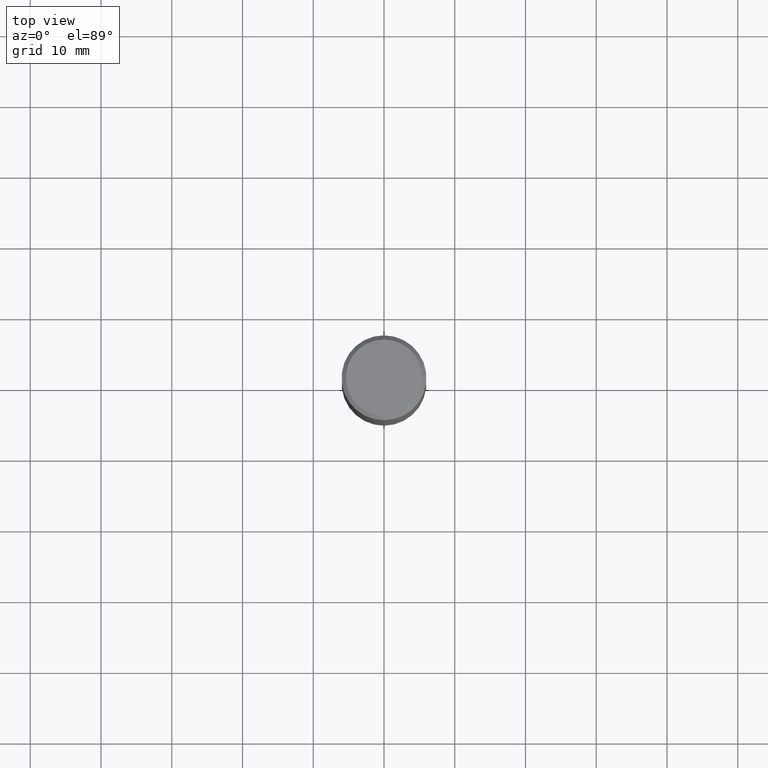
[diagram: clean part render]
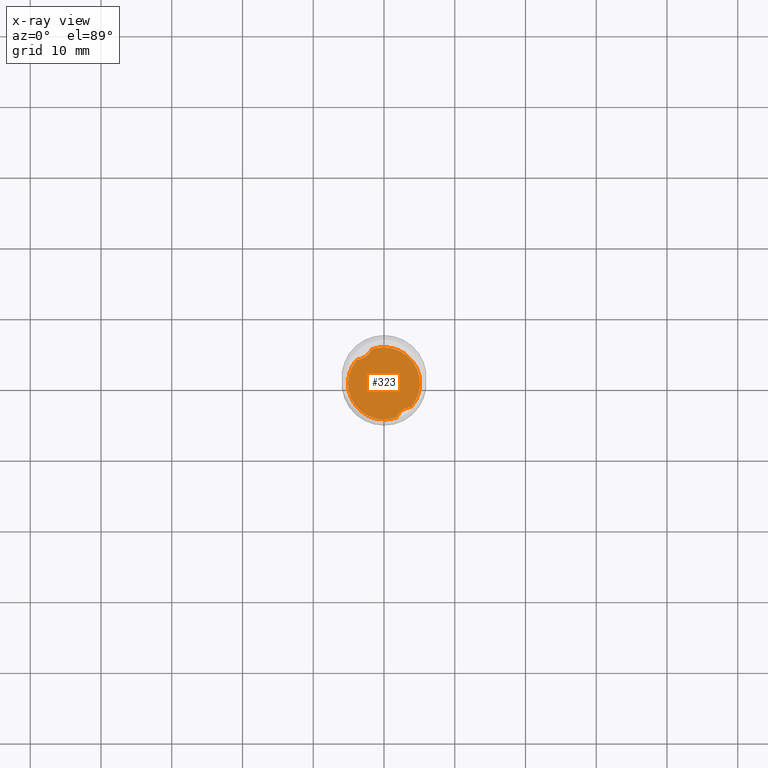
[diagram: x-ray — body ghosted, one internal face saturated and labeled with its STEP entity id]
A machine part, top view, then the same camera in x-ray: the body is ghosted and one INTERNAL B-rep face — a face not visible from any outside direction — is saturated and labeled: STEP entity #323.
In plain terms, the highlighted planar face has unit normal (-0, 0, 1).
Its self-contained STEP definition (entity closure, byte-faithful):
#287=EDGE_CURVE('',#489,#417,#802,.T.);
#323=ADVANCED_FACE('',(#841),#842,.T.);
#391=VERTEX_POINT('',#917);
#417=VERTEX_POINT('',#945);
#431=VERTEX_POINT('',#959);
#433=EDGE_CURVE('',#417,#473,#961,.T.);
#473=VERTEX_POINT('',#1003);
#489=VERTEX_POINT('',#1020);
#509=EDGE_CURVE('',#547,#473,#1041,.T.);
#547=VERTEX_POINT('',#1083);
#585=EDGE_CURVE('',#489,#391,#1124,.T.);
#609=EDGE_CURVE('',#431,#391,#1149,.T.);
#717=EDGE_CURVE('',#547,#431,#1272,.T.);
#802=CIRCLE('',#1378,5.0999);
#841=FACE_OUTER_BOUND('',#2686,.T.);
#842=PLANE('',#2687);
#917=CARTESIAN_POINT('',(-3.86434643755276,3.32803344643249,-47.0));
#945=CARTESIAN_POINT('',(-6.31360271403751E-016,5.0999,-47.0));
#959=CARTESIAN_POINT('',(6.38324494987265E-016,-5.0999,-47.0));
#961=CIRCLE('',#3511,5.0999);
#1003=CARTESIAN_POINT('',(3.86434643755276,-3.32803344643248,-47.0));
#1020=CARTESIAN_POINT('',(-1.73731639661873,4.79486305831978,-47.0));
#1041=B_SPLINE_CURVE_WITH_KNOTS('',3,(#4126,#4127,#4128,#4129,#4130,#4131,#4132,#4133,#4134,#4135,#4136,#4137),.UNSPECIFIED.,.F.,.F.,(4,2,2,2,2,4),(0.0,1.10723314073604,2.11958785116562,3.1409590786592,3.7667617898246,4.41909351230673),.UNSPECIFIED.);
#1083=CARTESIAN_POINT('',(1.73731639661872,-4.79486305831978,-47.0));
#1124=B_SPLINE_CURVE_WITH_KNOTS('',3,(#4397,#4398,#4399,#4400,#4401,#4402,#4403,#4404,#4405,#4406,#4407,#4408),.UNSPECIFIED.,.F.,.F.,(4,2,2,2,2,4),(0.0,1.10723314073602,2.11958785116556,3.14095907865911,3.76676178982449,4.41909351230659),.UNSPECIFIED.);
#1149=CIRCLE('',#4440,5.0999);
#1272=CIRCLE('',#4845,5.0999);
#1378=AXIS2_PLACEMENT_3D('',#5338,#5339,#5340);
#2686=EDGE_LOOP('',(#5389,#5390,#5391,#5392,#5393,#5394));
#2687=AXIS2_PLACEMENT_3D('',#5395,#5396,#5397);
#3511=AXIS2_PLACEMENT_3D('',#5488,#5489,#5490);
#4126=CARTESIAN_POINT('',(1.59277174790953,-5.1499,-47.0));
#4127=CARTESIAN_POINT('',(1.70971402634469,-4.79983877367686,-47.0));
#4128=CARTESIAN_POINT('',(1.88818624894995,-4.47619437675276,-46.9999999999859));
#4129=CARTESIAN_POINT('',(2.35169074927456,-3.94498562605708,-46.9999999999859));
#4130=CARTESIAN_POINT('',(2.61830594338302,-3.7392700400087,-47.0000000000008));
#4131=CARTESIAN_POINT('',(3.22463754976274,-3.4400260263407,-47.0000000000008));
#4132=CARTESIAN_POINT('',(3.55413334776805,-3.3527956448789,-47.0000000000001));
#4133=CARTESIAN_POINT('',(4.10065092974092,-3.30891485571583,-47.0000000000001));
#4134=CARTESIAN_POINT('',(4.30941010939906,-3.31495683389775,-47.0));
#4135=CARTESIAN_POINT('',(4.73156431446692,-3.36906504336922,-47.0));
#4136=CARTESIAN_POINT('',(4.9437456025048,-3.41875647593744,-47.0));
#4137=CARTESIAN_POINT('',(5.1499,-3.48750298960374,-47.0));
#4397=CARTESIAN_POINT('',(-1.59277174790953,5.1499,-47.0));
#4398=CARTESIAN_POINT('',(-1.70971402634468,4.79983877367687,-47.0));
#4399=CARTESIAN_POINT('',(-1.88818624894995,4.47619437675276,-46.9999999999859));
#4400=CARTESIAN_POINT('',(-2.35169074927456,3.94498562605708,-46.9999999999859));
#4401=CARTESIAN_POINT('',(-2.61830594338302,3.7392700400087,-47.0000000000008));
#4402=CARTESIAN_POINT('',(-3.22463754976274,3.4400260263407,-47.0000000000008));
#4403=CARTESIAN_POINT('',(-3.55413334776805,3.3527956448789,-47.0000000000001));
#4404=CARTESIAN_POINT('',(-4.10065092974092,3.30891485571583,-47.0000000000001));
#4405=CARTESIAN_POINT('',(-4.30941010939906,3.31495683389775,-47.0));
#4406=CARTESIAN_POINT('',(-4.73156431446692,3.36906504336922,-47.0));
#4407=CARTESIAN_POINT('',(-4.9437456025048,3.41875647593744,-47.0));
#4408=CARTESIAN_POINT('',(-5.1499,3.48750298960374,-47.0));
#4440=AXIS2_PLACEMENT_3D('',#5650,#5651,#5652);
#4845=AXIS2_PLACEMENT_3D('',#5869,#5870,#5871);
#5338=CARTESIAN_POINT('',(0.0,0.0,-47.0));
#5339=DIRECTION('',(0.0,0.0,-1.0));
#5340=DIRECTION('',(0.0,1.0,0.0));
#5389=ORIENTED_EDGE('',*,*,#509,.T.);
#5390=ORIENTED_EDGE('',*,*,#433,.F.);
#5391=ORIENTED_EDGE('',*,*,#287,.F.);
#5392=ORIENTED_EDGE('',*,*,#585,.T.);
#5393=ORIENTED_EDGE('',*,*,#609,.F.);
#5394=ORIENTED_EDGE('',*,*,#717,.F.);
#5395=CARTESIAN_POINT('',(0.0,2.54995,-47.0));
#5396=DIRECTION('',(-0.0,0.0,1.0));
#5397=DIRECTION('',(0.0,-1.0,0.0));
#5488=CARTESIAN_POINT('',(0.0,0.0,-47.0));
#5489=DIRECTION('',(0.0,0.0,-1.0));
#5490=DIRECTION('',(0.0,1.0,0.0));
#5650=CARTESIAN_POINT('',(0.0,0.0,-47.0));
#5651=DIRECTION('',(0.0,0.0,-1.0));
#5652=DIRECTION('',(0.0,1.0,0.0));
#5869=CARTESIAN_POINT('',(0.0,0.0,-47.0));
#5870=DIRECTION('',(0.0,0.0,-1.0));
#5871=DIRECTION('',(0.0,1.0,0.0));